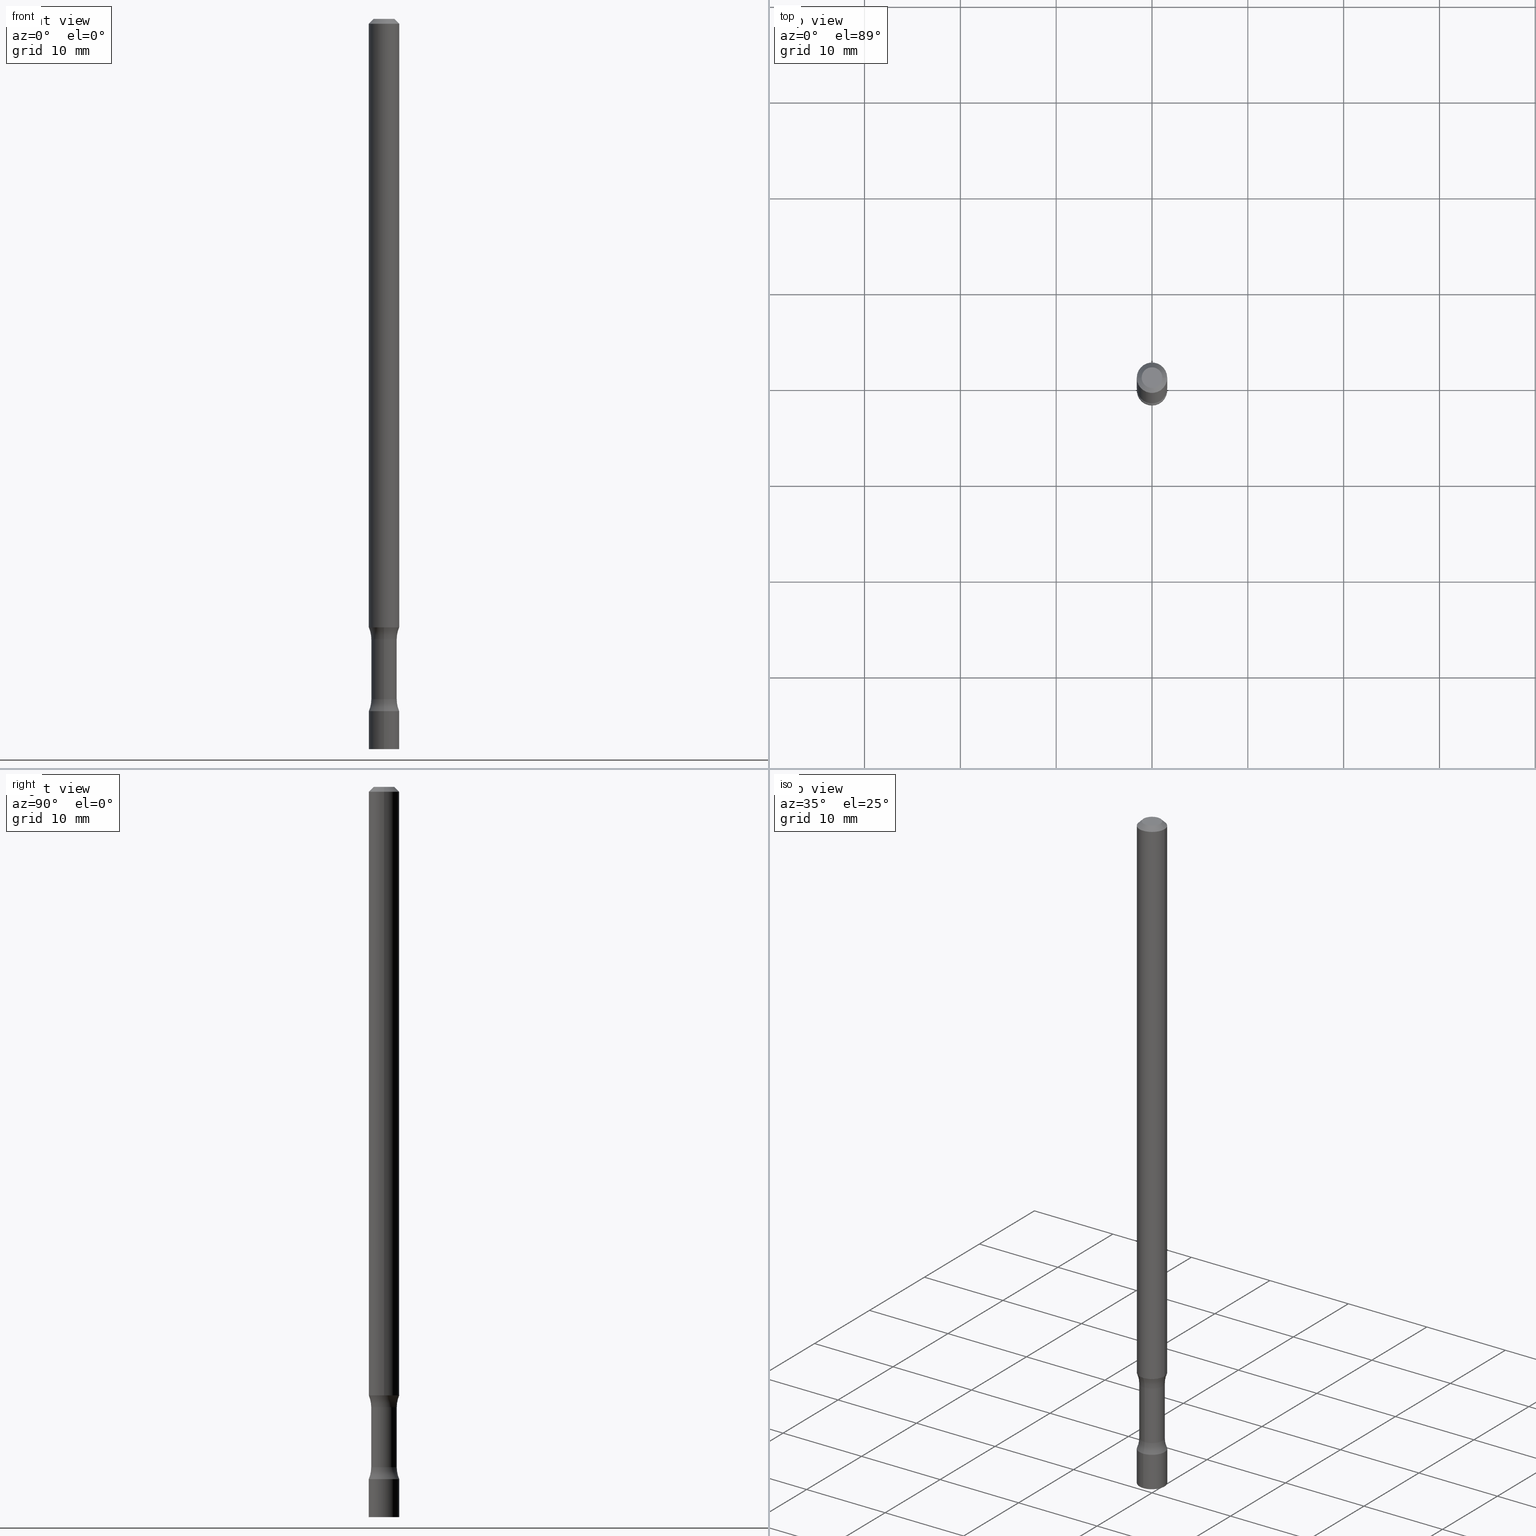
[diagram: canonical four-view strip — front | top / right | iso, engineering-drawing reading convention]
A machine part, canonical four-view strip (front | top / right | iso — engineering-drawing reading convention). The complete STEP part file that produces these views, byte-faithful:
ISO-10303-21;
HEADER;
FILE_DESCRIPTION (( 'STEP AP203' ),
    '1' );
FILE_NAME ('32700.STEP',
    '2024-03-11T13:16:19',
    ( '' ),
    ( '' ),
    'SwSTEP 2.0',
    'SolidWorks 2023',
    '' );
FILE_SCHEMA (( 'CONFIG_CONTROL_DESIGN' ));
ENDSEC;

DATA;
#1 = DIRECTION ( 'NONE',  ( 6.982962677686265922E-15, 1.000000000000000000, -5.664655036175374485E-15 ) ) ;
#2 = DIRECTION ( 'NONE',  ( -9.279497241250937144E-30, 5.664655036175374485E-15, 1.000000000000000000 ) ) ;
#3 = CARTESIAN_POINT ( 'NONE',  ( 4.440892098500635036E-16, 0.06250000000000012490, -2.176388210955470377E-16 ) ) ;
#4 = EDGE_LOOP ( 'NONE', ( #107, #236, #346, #376 ) ) ;
#5 = EDGE_CURVE ( 'NONE', #458, #188, #14, .T. ) ;
#6 = CARTESIAN_POINT ( 'NONE',  ( 0.000000000000000000, 0.000000000000000000, 0.000000000000000000 ) ) ;
#7 = DIRECTION ( 'NONE',  ( 6.982962677686265922E-15, 1.000000000000000000, -1.040703997586390090E-14 ) ) ;
#8 = COORDINATED_UNIVERSAL_TIME_OFFSET ( 5, 0, .BEHIND. ) ;
#9 = DIRECTION ( 'NONE',  ( 1.000000000000000000, -6.982962677686265922E-15, 4.876176775795935793E-29 ) ) ;
#10 = PERSON_AND_ORGANIZATION ( #508, #379 ) ;
#11 = CARTESIAN_POINT ( 'NONE',  ( 0.000000000000000000, 0.000000000000000000, 0.000000000000000000 ) ) ;
#12 = DIRECTION ( 'NONE',  ( 9.279497241250942749E-30, -5.664655036175374485E-15, -1.000000000000000000 ) ) ;
#13 = APPROVAL ( #252, 'UNSPECIFIED' ) ;
#14 = CIRCLE ( 'NONE', #63, 0.06249999999999981265 ) ;
#15 = APPROVAL_PERSON_ORGANIZATION ( #476, #13, #50 ) ;
#16 = PERSON_AND_ORGANIZATION_ROLE ( 'creator' ) ;
#17 = CARTESIAN_POINT ( 'NONE',  ( 4.440892098501371635E-16, 0.06249999999999023004, -2.843800000000000328 ) ) ;
#18 = CARTESIAN_POINT ( 'NONE',  ( 8.350811314681758556E-46, -1.192274536304357760E-31, -3.414809992080329023E-17 ) ) ;
#19 = CC_DESIGN_DATE_AND_TIME_ASSIGNMENT ( #166, #281, ( #145 ) ) ;
#20 = ORIENTED_EDGE ( 'NONE', *, *, #214, .T. ) ;
#21 = AXIS2_PLACEMENT_3D ( 'NONE', #452, #414, #225 ) ;
#22 = VECTOR ( 'NONE', #462, 39.37007874015748143 ) ;
#23 = FACE_OUTER_BOUND ( 'NONE', #332, .T. ) ;
#24 = ORIENTED_EDGE ( 'NONE', *, *, #497, .F. ) ;
#25 = DIRECTION ( 'NONE',  ( -6.982962677686265922E-15, -1.000000000000000000, 3.482221137528745503E-15 ) ) ;
#26 = DIRECTION ( 'NONE',  ( 1.000000000000000000, -6.982962677686276966E-15, 0.000000000000000000 ) ) ;
#27 = ORIENTED_EDGE ( 'NONE', *, *, #241, .F. ) ;
#28 = VECTOR ( 'NONE', #280, 39.37007874015748143 ) ;
#29 = APPROVAL_PERSON_ORGANIZATION ( #478, #419, #480 ) ;
#30 = DIRECTION ( 'NONE',  ( 9.279497241250942749E-30, -5.664655036175374485E-15, -1.000000000000000000 ) ) ;
#31 = ORIENTED_EDGE ( 'NONE', *, *, #185, .T. ) ;
#32 = ADVANCED_FACE ( 'NONE', ( #113 ), #270, .F. ) ;
#33 = CARTESIAN_POINT ( 'NONE',  ( 6.113672015462842613E-29, -8.728703347107864943E-15, -2.500000000000000000 ) ) ;
#34 = ORIENTED_EDGE ( 'NONE', *, *, #311, .F. ) ;
#35 = DIRECTION ( 'NONE',  ( -2.445468806185136597E-29, 3.491481338843145583E-15, 1.000000000000000000 ) ) ;
#36 = DIRECTION ( 'NONE',  ( 1.000000000000000000, -6.982962677686266711E-15, 0.000000000000000000 ) ) ;
#37 = CIRCLE ( 'NONE', #498, 0.06250000000000012490 ) ;
#38 = DIRECTION ( 'NONE',  ( 9.279497241250942749E-30, -5.664655036175374485E-15, -1.000000000000000000 ) ) ;
#39 = DIRECTION ( 'NONE',  ( -2.445468806185136597E-29, 3.491481338843145583E-15, 1.000000000000000000 ) ) ;
#40 = DIRECTION ( 'NONE',  ( -2.445468806185136877E-29, 3.491481338843145188E-15, 1.000000000000000000 ) ) ;
#41 = ORIENTED_EDGE ( 'NONE', *, *, #436, .T. ) ;
#42 = ADVANCED_FACE ( 'NONE', ( #310 ), #93, .T. ) ;
#43 = COORDINATED_UNIVERSAL_TIME_OFFSET ( 5, 0, .BEHIND. ) ;
#44 = ORIENTED_EDGE ( 'NONE', *, *, #200, .T. ) ;
#45 = PERSON_AND_ORGANIZATION ( #508, #379 ) ;
#46 = AXIS2_PLACEMENT_3D ( 'NONE', #321, #253, #481 ) ;
#47 = AXIS2_PLACEMENT_3D ( 'NONE', #390, #35, #468 ) ;
#48 = DIRECTION ( 'NONE',  ( -1.000000000000000000, 6.982962677686265922E-15, -4.883557194083112901E-29 ) ) ;
#49 = APPLICATION_CONTEXT ( 'configuration controlled 3d designs of mechanical parts and assemblies' ) ;
#50 = APPROVAL_ROLE ( '' ) ;
#51 = CARTESIAN_POINT ( 'NONE',  ( 0.06249999999999981265, -4.986107516375828376E-16, -0.02000000000000013572 ) ) ;
#52 = CC_DESIGN_DATE_AND_TIME_ASSIGNMENT ( #316, #357, ( #228 ) ) ;
#53 = FACE_OUTER_BOUND ( 'NONE', #226, .T. ) ;
#54 = APPROVAL_STATUS ( 'not_yet_approved' ) ;
#55 = PLANE ( 'NONE',  #504 ) ;
#56 = AXIS2_PLACEMENT_3D ( 'NONE', #374, #106, #25 ) ;
#57 = AXIS2_PLACEMENT_3D ( 'NONE', #6, #198, #359 ) ;
#58 = FACE_OUTER_BOUND ( 'NONE', #301, .T. ) ;
#59 = EDGE_CURVE ( 'NONE', #86, #149, #201, .T. ) ;
#60 = FACE_OUTER_BOUND ( 'NONE', #308, .T. ) ;
#61 = VERTEX_POINT ( 'NONE', #165 ) ;
#62 = DIRECTION ( 'NONE',  ( 6.982962677686265133E-15, 1.000000000000000000, -1.040703997586395454E-14 ) ) ;
#63 = AXIS2_PLACEMENT_3D ( 'NONE', #466, #39, #36 ) ;
#64 = CIRCLE ( 'NONE', #47, 0.04249999999999975325 ) ;
#65 = PRODUCT_DEFINITION_FORMATION_WITH_SPECIFIED_SOURCE ( 'ANY', '', #348, .NOT_KNOWN. ) ;
#66 = DIRECTION ( 'NONE',  ( 6.982962677686265922E-15, 1.000000000000000000, -1.040703997586390090E-14 ) ) ;
#67 = APPLICATION_CONTEXT ( 'configuration controlled 3d designs of mechanical parts and assemblies' ) ;
#68 = ORIENTED_EDGE ( 'NONE', *, *, #397, .F. ) ;
#69 = FACE_OUTER_BOUND ( 'NONE', #275, .T. ) ;
#70 = CARTESIAN_POINT ( 'NONE',  ( 6.927353170398529662E-29, -9.625230182753911430E-15, -2.794810205144336201 ) ) ;
#71 = ORIENTED_EDGE ( 'NONE', *, *, #380, .T. ) ;
#72 = VECTOR ( 'NONE', #12, 39.37007874015748143 ) ;
#73 = LOCAL_TIME ( 9, 16, 19.00000000000000000, #43 ) ;
#74 = CARTESIAN_POINT ( 'NONE',  ( 4.890937612370306439E-31, -6.982962677686338448E-17, -0.02000000000000013572 ) ) ;
#75 = VERTEX_POINT ( 'NONE', #407 ) ;
#76 = PRODUCT_RELATED_PRODUCT_CATEGORY ( 'detail', '', ( #348 ) ) ;
#77 =( LENGTH_UNIT ( ) NAMED_UNIT ( * ) SI_UNIT ( $, .METRE. ) );
#78 = ORIENTED_EDGE ( 'NONE', *, *, #224, .F. ) ;
#79 = CARTESIAN_POINT ( 'NONE',  ( 0.06249999999999981265, -4.986107516375828376E-16, -0.02000000000000013572 ) ) ;
#80 = ORIENTED_EDGE ( 'NONE', *, *, #82, .F. ) ;
#81 = CLOSED_SHELL ( 'NONE', ( #105, #285, #442, #116 ) ) ;
#82 = EDGE_CURVE ( 'NONE', #388, #190, #329, .T. ) ;
#83 = LINE ( 'NONE', #302, #239 ) ;
#84 = ORIENTED_EDGE ( 'NONE', *, *, #455, .T. ) ;
#85 = PERSON_AND_ORGANIZATION_ROLE ( 'design_owner' ) ;
#86 = VERTEX_POINT ( 'NONE', #17 ) ;
#87 = PERSON_AND_ORGANIZATION ( #508, #379 ) ;
#88 = DIRECTION ( 'NONE',  ( 6.982962677686265922E-15, 1.000000000000000000, -5.664655036175374485E-15 ) ) ;
#89 = ADVANCED_FACE ( 'NONE', ( #404 ), #487, .F. ) ;
#90 = COORDINATED_UNIVERSAL_TIME_OFFSET ( 5, 0, .BEHIND. ) ;
#91 = VECTOR ( 'NONE', #408, 39.37007874015748143 ) ;
#92 = CIRCLE ( 'NONE', #447, 0.06250000000000012490 ) ;
#93 = CYLINDRICAL_SURFACE ( 'NONE', #323, 0.06249999999999991673 ) ;
#94 = APPROVAL_DATE_TIME ( #283, #419 ) ;
#95 = DIRECTION ( 'NONE',  ( -2.445468806185136597E-29, 3.491481338843145583E-15, 1.000000000000000000 ) ) ;
#96 = PERSON_AND_ORGANIZATION_ROLE ( 'creator' ) ;
#97 = DIRECTION ( 'NONE',  ( 9.279497241250942749E-30, -5.664655036175374485E-15, -1.000000000000000000 ) ) ;
#98 = EDGE_CURVE ( 'NONE', #75, #368, #168, .T. ) ;
#99 = DIRECTION ( 'NONE',  ( 9.279497241250942749E-30, -5.664655036175374485E-15, -1.000000000000000000 ) ) ;
#100 = AXIS2_PLACEMENT_3D ( 'NONE', #18, #174, #328 ) ;
#101 = CARTESIAN_POINT ( 'NONE',  ( -0.06249999999999981265, 3.666055405785269414E-16, -0.02000000000000013572 ) ) ;
#102 = CYLINDRICAL_SURFACE ( 'NONE', #387, 0.05249999999999951927 ) ;
#103 = DIRECTION ( 'NONE',  ( 6.982962677686265133E-15, 1.000000000000000000, -1.040703997586400819E-14 ) ) ;
#104 = CLOSED_SHELL ( 'NONE', ( #118, #251, #303, #209, #124, #42 ) ) ;
#105 = ADVANCED_FACE ( 'NONE', ( #445 ), #485, .T. ) ;
#106 = DIRECTION ( 'NONE',  ( -2.451935170201767991E-29, 3.482221137528745897E-15, 1.000000000000000000 ) ) ;
#107 = ORIENTED_EDGE ( 'NONE', *, *, #455, .F. ) ;
#108 = CARTESIAN_POINT ( 'NONE',  ( -0.04249999999999975325, 3.316907271900957360E-16, -3.414809992080549041E-17 ) ) ;
#109 = ORIENTED_EDGE ( 'NONE', *, *, #98, .T. ) ;
#110 = ORIENTED_EDGE ( 'NONE', *, *, #5, .F. ) ;
#111 = AXIS2_PLACEMENT_3D ( 'NONE', #11, #401, #248 ) ;
#112 = CC_DESIGN_APPROVAL ( #419, ( #145 ) ) ;
#113 = FACE_OUTER_BOUND ( 'NONE', #454, .T. ) ;
#114 = CARTESIAN_POINT ( 'NONE',  ( 6.972813237019788711E-29, -9.902740470904248749E-15, -2.843800000000000328 ) ) ;
#115 = VERTEX_POINT ( 'NONE', #282 ) ;
#116 = ADVANCED_FACE ( 'NONE', ( #287 ), #55, .T. ) ;
#117 = ORIENTED_EDGE ( 'NONE', *, *, #214, .F. ) ;
#118 = ADVANCED_FACE ( 'NONE', ( #58 ), #173, .T. ) ;
#119 = CIRCLE ( 'NONE', #354, 0.06250000000000001388 ) ;
#120 = DIRECTION ( 'NONE',  ( 1.000000000000000000, -6.982962677686266711E-15, 0.000000000000000000 ) ) ;
#121 = VERTEX_POINT ( 'NONE', #216 ) ;
#122 = MANIFOLD_SOLID_BREP ( 'Body-Move/Copy2[4]', #345 ) ;
#123 = CALENDAR_DATE ( 2024, 11, 3 ) ;
#124 = ADVANCED_FACE ( 'NONE', ( #435 ), #358, .F. ) ;
#125 = DIRECTION ( 'NONE',  ( -2.438088387897960049E-29, 3.491481338843145188E-15, 1.000000000000000000 ) ) ;
#126 =( CONVERSION_BASED_UNIT ( 'INCH', #318 ) LENGTH_UNIT ( ) NAMED_UNIT ( #416 ) );
#127 = DIRECTION ( 'NONE',  ( 9.279497241250942749E-30, -5.664655036175374485E-15, -1.000000000000000000 ) ) ;
#128 = APPROVAL ( #54, 'UNSPECIFIED' ) ;
#129 = CALENDAR_DATE ( 2024, 11, 3 ) ;
#130 = AXIS2_PLACEMENT_3D ( 'NONE', #231, #196, #277 ) ;
#131 = CARTESIAN_POINT ( 'NONE',  ( -4.364351673553925076E-16, -0.06250000000000012490, 2.176388210955470377E-16 ) ) ;
#132 = CARTESIAN_POINT ( 'NONE',  ( 6.972813237019788711E-29, -9.902740470904250327E-15, -2.843800000000000328 ) ) ;
#133 = FACE_OUTER_BOUND ( 'NONE', #428, .T. ) ;
#134 = CARTESIAN_POINT ( 'NONE',  ( 4.890937612370306439E-31, -6.982962677686338448E-17, -0.02000000000000013572 ) ) ;
#135 = CONICAL_SURFACE ( 'NONE', #422, 0.06249999999999981265, 0.7853981633974472798 ) ;
#136 = CC_DESIGN_APPROVAL ( #13, ( #65 ) ) ;
#137 = DIRECTION ( 'NONE',  ( 6.982962677686265922E-15, 1.000000000000000000, -5.664655036175374485E-15 ) ) ;
#138 = ORIENTED_EDGE ( 'NONE', *, *, #506, .T. ) ;
#139 = DIRECTION ( 'NONE',  ( 6.982962677686265133E-15, 1.000000000000000000, -1.040703997586395454E-14 ) ) ;
#140 = EDGE_LOOP ( 'NONE', ( #117, #80 ) ) ;
#141 = DIRECTION ( 'NONE',  ( 2.438088387897960049E-29, -3.491481338843145188E-15, -1.000000000000000000 ) ) ;
#142 = ORIENTED_EDGE ( 'NONE', *, *, #297, .T. ) ;
#143 = AXIS2_PLACEMENT_3D ( 'NONE', #395, #48, #364 ) ;
#144 = AXIS2_PLACEMENT_3D ( 'NONE', #421, #465, #1 ) ;
#145 = SECURITY_CLASSIFICATION ( '', '', #394 ) ;
#146 = CARTESIAN_POINT ( 'NONE',  ( 7.355805510605304813E-29, -1.044666341258623809E-14, -3.000000000000000444 ) ) ;
#147 = ORIENTED_EDGE ( 'NONE', *, *, #426, .T. ) ;
#148 = CARTESIAN_POINT ( 'NONE',  ( -1.217738394604375642E-15, -0.1775000000000093725, -2.794810205144334425 ) ) ;
#149 = VERTEX_POINT ( 'NONE', #479 ) ;
#150 = CARTESIAN_POINT ( 'NONE',  ( 6.972813237019788711E-29, -9.902740470904248749E-15, -2.843800000000000328 ) ) ;
#151 = ORIENTED_EDGE ( 'NONE', *, *, #365, .T. ) ;
#152 = AXIS2_PLACEMENT_3D ( 'NONE', #477, #125, #9 ) ;
#153 = CARTESIAN_POINT ( 'NONE',  ( 6.653784121865581936E-29, -7.955232069467152973E-15, -2.500000000000000000 ) ) ;
#154 = ORIENTED_EDGE ( 'NONE', *, *, #219, .F. ) ;
#155 = CARTESIAN_POINT ( 'NONE',  ( -4.287811248606521904E-16, -0.06250000000001010303, -2.843799999999999883 ) ) ;
#156 = DIRECTION ( 'NONE',  ( -6.982962677686265922E-15, -1.000000000000000000, 5.664655036175374485E-15 ) ) ;
#157 = LINE ( 'NONE', #3, #221 ) ;
#158 = ORIENTED_EDGE ( 'NONE', *, *, #497, .T. ) ;
#159 = AXIS2_PLACEMENT_3D ( 'NONE', #264, #255, #62 ) ;
#160 = COORDINATED_UNIVERSAL_TIME_OFFSET ( 5, 0, .BEHIND. ) ;
#161 = AXIS2_PLACEMENT_3D ( 'NONE', #266, #233, #381 ) ;
#162 = CARTESIAN_POINT ( 'NONE',  ( 6.930003138792703270E-29, -9.621435277186618762E-15, -2.794810205144335757 ) ) ;
#163 = EDGE_CURVE ( 'NONE', #190, #149, #167, .T. ) ;
#164 = CALENDAR_DATE ( 2024, 11, 3 ) ;
#165 = CARTESIAN_POINT ( 'NONE',  ( 4.364351673554629134E-16, 0.06249999999999029943, -2.843800000000000772 ) ) ;
#166 = DATE_AND_TIME ( #164, #325 ) ;
#167 = LINE ( 'NONE', #131, #28 ) ;
#168 = CIRCLE ( 'NONE', #405, 0.05249999999999978989 ) ;
#169 = AXIS2_PLACEMENT_3D ( 'NONE', #148, #460, #386 ) ;
#170 = CARTESIAN_POINT ( 'NONE',  ( 6.699244188486840986E-29, -8.232742357617490292E-15, -2.548989794855664570 ) ) ;
#171 = ADVANCED_FACE ( 'NONE', ( #53 ), #284, .F. ) ;
#172 = DATE_AND_TIME ( #352, #473 ) ;
#173 = CYLINDRICAL_SURFACE ( 'NONE', #111, 0.06249999999999991673 ) ;
#174 = DIRECTION ( 'NONE',  ( -2.445468806185136597E-29, 3.491481338843145583E-15, 1.000000000000000000 ) ) ;
#175 = EDGE_CURVE ( 'NONE', #420, #75, #327, .T. ) ;
#176 = CARTESIAN_POINT ( 'NONE',  ( -3.944786348717910241E-16, -0.05250000000000748512, -2.548989794855663682 ) ) ;
#177 = AXIS2_PLACEMENT_3D ( 'NONE', #180, #141, #333 ) ;
#178 = TOROIDAL_SURFACE ( 'NONE', #362, 0.1774999999999997413, 0.1250000000000000000 ) ;
#179 = EDGE_CURVE ( 'NONE', #61, #75, #378, .T. ) ;
#180 = CARTESIAN_POINT ( 'NONE',  ( 2.967759138016645800E-16, 0.04249999999999975325, -1.654620068612344651E-16 ) ) ;
#181 = CYLINDRICAL_SURFACE ( 'NONE', #159, 0.05249999999999951927 ) ;
#182 = CARTESIAN_POINT ( 'NONE',  ( 6.699244188486840986E-29, -8.232742357617490292E-15, -2.548989794855664570 ) ) ;
#183 = ORIENTED_EDGE ( 'NONE', *, *, #163, .F. ) ;
#184 = CONICAL_SURFACE ( 'NONE', #21, 0.06249999999999981265, 0.7853981633974472798 ) ;
#185 = EDGE_CURVE ( 'NONE', #420, #337, #246, .T. ) ;
#186 = PLANE ( 'NONE',  #489 ) ;
#187 = DIRECTION ( 'NONE',  ( 1.000000000000000000, -6.982962677686276966E-15, 0.000000000000000000 ) ) ;
#188 = VERTEX_POINT ( 'NONE', #51 ) ;
#189 = DIRECTION ( 'NONE',  ( 6.982962677686265922E-15, 1.000000000000000000, -3.482221137528745897E-15 ) ) ;
#190 = VERTEX_POINT ( 'NONE', #326 ) ;
#191 = AXIS2_PLACEMENT_3D ( 'NONE', #205, #207, #319 ) ;
#192 = AXIS2_PLACEMENT_3D ( 'NONE', #114, #427, #269 ) ;
#193 = FACE_OUTER_BOUND ( 'NONE', #425, .T. ) ;
#194 = ADVANCED_FACE ( 'NONE', ( #133 ), #102, .T. ) ;
#195 = CARTESIAN_POINT ( 'NONE',  ( 6.954424191029292150E-29, -9.929074631402139706E-15, -2.843800000000000328 ) ) ;
#196 = DIRECTION ( 'NONE',  ( -1.000000000000000000, 6.982962677686265922E-15, -4.883557194083112901E-29 ) ) ;
#197 = EDGE_LOOP ( 'NONE', ( #244, #142 ) ) ;
#198 = DIRECTION ( 'NONE',  ( 0.000000000000000000, 0.000000000000000000, 1.000000000000000000 ) ) ;
#199 = VERTEX_POINT ( 'NONE', #262 ) ;
#200 = EDGE_CURVE ( 'NONE', #234, #121, #430, .T. ) ;
#201 = CIRCLE ( 'NONE', #396, 0.06250000000000012490 ) ;
#202 = AXIS2_PLACEMENT_3D ( 'NONE', #331, #492, #137 ) ;
#203 = PERSON_AND_ORGANIZATION_ROLE ( 'classification_officer' ) ;
#204 = CIRCLE ( 'NONE', #306, 0.06249999999999938244 ) ;
#205 = CARTESIAN_POINT ( 'NONE',  ( 7.355805510605304813E-29, -1.044666341258623809E-14, -3.000000000000000444 ) ) ;
#206 = PERSON_AND_ORGANIZATION ( #508, #379 ) ;
#207 = DIRECTION ( 'NONE',  ( -2.451935170201767991E-29, 3.482221137528745897E-15, 1.000000000000000000 ) ) ;
#208 = PERSON_AND_ORGANIZATION ( #508, #379 ) ;
#209 = ADVANCED_FACE ( 'NONE', ( #293 ), #338, .F. ) ;
#210 = CARTESIAN_POINT ( 'NONE',  ( 6.113672015462842613E-29, -8.728703347107864943E-15, -2.500000000000000000 ) ) ;
#211 = APPROVAL_ROLE ( '' ) ;
#212 = AXIS2_PLACEMENT_3D ( 'NONE', #499, #366, #495 ) ;
#213 = DIRECTION ( 'NONE',  ( 9.279497241250937144E-30, -5.664655036175374485E-15, -1.000000000000000000 ) ) ;
#214 = EDGE_CURVE ( 'NONE', #190, #388, #37, .T. ) ;
#215 =( GEOMETRIC_REPRESENTATION_CONTEXT ( 3 ) GLOBAL_UNCERTAINTY_ASSIGNED_CONTEXT ( ( #484 ) ) GLOBAL_UNIT_ASSIGNED_CONTEXT ( ( #126, #402, #440 ) ) REPRESENTATION_CONTEXT ( 'NONE', 'WORKASPACE' ) );
#216 = CARTESIAN_POINT ( 'NONE',  ( 4.364351673554537429E-16, 0.06249999999999137495, -2.500000000000000444 ) ) ;
#217 = CARTESIAN_POINT ( 'NONE',  ( 0.04249999999999975325, -3.950909582714356105E-16, -3.414809992080087434E-17 ) ) ;
#218 = ORIENTED_EDGE ( 'NONE', *, *, #436, .F. ) ;
#219 = EDGE_CURVE ( 'NONE', #115, #199, #119, .T. ) ;
#220 = FACE_OUTER_BOUND ( 'NONE', #343, .T. ) ;
#221 = VECTOR ( 'NONE', #350, 39.37007874015748143 ) ;
#222 = AXIS2_PLACEMENT_3D ( 'NONE', #74, #502, #120 ) ;
#223 = CIRCLE ( 'NONE', #398, 0.06250000000000001388 ) ;
#224 = EDGE_CURVE ( 'NONE', #337, #420, #260, .T. ) ;
#225 = DIRECTION ( 'NONE',  ( -1.000000000000000000, 6.982962677686266711E-15, 0.000000000000000000 ) ) ;
#226 = EDGE_LOOP ( 'NONE', ( #68, #349 ) ) ;
#227 = DIRECTION ( 'NONE',  ( 9.279497241250942749E-30, -5.664655036175374485E-15, -1.000000000000000000 ) ) ;
#228 = PRODUCT_DEFINITION ( 'UNKNOWN', '', #65, #429 ) ;
#229 = ORIENTED_EDGE ( 'NONE', *, *, #385, .F. ) ;
#230 = ADVANCED_BREP_SHAPE_REPRESENTATION ( '32700', ( #474, #469, #122, #57 ), #215 ) ;
#231 = CARTESIAN_POINT ( 'NONE',  ( 1.239475875289373833E-15, 0.1774999999999909706, -2.548989794855665014 ) ) ;
#232 = CIRCLE ( 'NONE', #130, 0.1250000000000000000 ) ;
#233 = DIRECTION ( 'NONE',  ( 1.000000000000000000, -6.860497997771530774E-15, 4.814185177499851655E-29 ) ) ;
#234 = VERTEX_POINT ( 'NONE', #259 ) ;
#235 = DIRECTION ( 'NONE',  ( 6.982962677686265922E-15, 1.000000000000000000, -8.741913579725624944E-15 ) ) ;
#236 = ORIENTED_EDGE ( 'NONE', *, *, #400, .F. ) ;
#237 = CARTESIAN_POINT ( 'NONE',  ( -0.06249999999999981265, 3.666055405785269414E-16, -0.02000000000000013572 ) ) ;
#238 = ORIENTED_EDGE ( 'NONE', *, *, #59, .T. ) ;
#239 = VECTOR ( 'NONE', #40, 39.37007874015748143 ) ;
#240 = DIRECTION ( 'NONE',  ( 9.279497241250942749E-30, -5.664655036175374485E-15, -1.000000000000000000 ) ) ;
#241 = EDGE_CURVE ( 'NONE', #337, #368, #494, .T. ) ;
#242 = VERTEX_POINT ( 'NONE', #217 ) ;
#243 = APPLICATION_PROTOCOL_DEFINITION ( 'international standard', 'config_control_design', 1994, #49 ) ;
#244 = ORIENTED_EDGE ( 'NONE', *, *, #400, .T. ) ;
#245 = CARTESIAN_POINT ( 'NONE',  ( 3.666055405785967063E-16, 0.05249999999998872929, -3.000000000000000888 ) ) ;
#246 = CIRCLE ( 'NONE', #413, 0.05249999999999925560 ) ;
#247 = PERSON_AND_ORGANIZATION ( #508, #379 ) ;
#248 = DIRECTION ( 'NONE',  ( 1.000000000000000000, -6.982962677686266711E-15, 4.876176775795935793E-29 ) ) ;
#249 = SHAPE_DEFINITION_REPRESENTATION ( #273, #230 ) ;
#250 = DIRECTION ( 'NONE',  ( 6.982962677686265922E-15, 1.000000000000000000, -3.482221137528745897E-15 ) ) ;
#251 = ADVANCED_FACE ( 'NONE', ( #69 ), #184, .T. ) ;
#252 = APPROVAL_STATUS ( 'not_yet_approved' ) ;
#253 = DIRECTION ( 'NONE',  ( -2.451935170201767991E-29, 3.482221137528745897E-15, 1.000000000000000000 ) ) ;
#254 = DIRECTION ( 'NONE',  ( -2.451935170201767991E-29, 3.482221137528745897E-15, 1.000000000000000000 ) ) ;
#255 = DIRECTION ( 'NONE',  ( 9.279497241250942749E-30, -5.664655036175374485E-15, -1.000000000000000000 ) ) ;
#256 = EDGE_CURVE ( 'NONE', #368, #75, #314, .T. ) ;
#257 = DIRECTION ( 'NONE',  ( -6.982962677686265922E-15, -1.000000000000000000, 0.000000000000000000 ) ) ;
#258 = ORIENTED_EDGE ( 'NONE', *, *, #385, .T. ) ;
#259 = CARTESIAN_POINT ( 'NONE',  ( -4.287811248606495280E-16, -0.06250000000000728584, -2.499999999999999556 ) ) ;
#260 = CIRCLE ( 'NONE', #339, 0.05249999999999925560 ) ;
#261 = EDGE_LOOP ( 'NONE', ( #229, #138, #272, #110 ) ) ;
#262 = CARTESIAN_POINT ( 'NONE',  ( -0.06250000000000001388, -3.955177277092293616E-15, -2.500000000000000000 ) ) ;
#263 = ORIENTED_EDGE ( 'NONE', *, *, #185, .F. ) ;
#264 = CARTESIAN_POINT ( 'NONE',  ( 7.117758983928128793E-29, -1.078755958755484022E-14, -3.000000000000000444 ) ) ;
#265 = ORIENTED_EDGE ( 'NONE', *, *, #256, .F. ) ;
#266 = CARTESIAN_POINT ( 'NONE',  ( -1.217738394604374064E-15, -0.1775000000000074296, -2.548989794855662794 ) ) ;
#267 = VERTEX_POINT ( 'NONE', #108 ) ;
#268 = LOCAL_TIME ( 9, 16, 19.00000000000000000, #90 ) ;
#269 = DIRECTION ( 'NONE',  ( 6.982962677686265922E-15, 1.000000000000000000, -8.741913579725624944E-15 ) ) ;
#270 = PLANE ( 'NONE',  #488 ) ;
#271 = CARTESIAN_POINT ( 'NONE',  ( 6.954424191029292150E-29, -9.929074631402139706E-15, -2.843800000000000328 ) ) ;
#272 = ORIENTED_EDGE ( 'NONE', *, *, #412, .T. ) ;
#273 = PRODUCT_DEFINITION_SHAPE ( 'NONE', 'NONE',  #228 ) ;
#274 = CARTESIAN_POINT ( 'NONE',  ( 3.666055405785906912E-16, 0.05249999999999101913, -2.548989794855665014 ) ) ;
#275 = EDGE_LOOP ( 'NONE', ( #457, #84, #147, #34 ) ) ;
#276 = CC_DESIGN_PERSON_AND_ORGANIZATION_ASSIGNMENT ( #45, #203, ( #145 ) ) ;
#277 = DIRECTION ( 'NONE',  ( -6.982962677686265922E-15, -1.000000000000000000, 0.000000000000000000 ) ) ;
#278 = ORIENTED_EDGE ( 'NONE', *, *, #365, .F. ) ;
#279 = DATE_AND_TIME ( #123, #389 ) ;
#280 = DIRECTION ( 'NONE',  ( -2.451935170201767991E-29, 3.482221137528745897E-15, 1.000000000000000000 ) ) ;
#281 = DATE_TIME_ROLE ( 'classification_date' ) ;
#282 = CARTESIAN_POINT ( 'NONE',  ( 0.06250000000000001388, -9.165138514463256612E-15, -2.500000000000000000 ) ) ;
#283 = DATE_AND_TIME ( #320, #268 ) ;
#284 = PLANE ( 'NONE',  #470 ) ;
#285 = ADVANCED_FACE ( 'NONE', ( #23 ), #453, .T. ) ;
#286 = CARTESIAN_POINT ( 'NONE',  ( 0.000000000000000000, 0.000000000000000000, 0.000000000000000000 ) ) ;
#287 = FACE_OUTER_BOUND ( 'NONE', #140, .T. ) ;
#288 = TOROIDAL_SURFACE ( 'NONE', #202, 0.1774999999999991862, 0.1250000000000000000 ) ;
#289 = CARTESIAN_POINT ( 'NONE',  ( -3.601761448829309425E-16, -0.05250000000001030925, -2.999999999999999556 ) ) ;
#290 = EDGE_LOOP ( 'NONE', ( #154, #292 ) ) ;
#291 = CARTESIAN_POINT ( 'NONE',  ( 6.972813237019788711E-29, -9.902740470904250327E-15, -2.843800000000000328 ) ) ;
#292 = ORIENTED_EDGE ( 'NONE', *, *, #506, .F. ) ;
#293 = FACE_OUTER_BOUND ( 'NONE', #197, .T. ) ;
#294 = ADVANCED_FACE ( 'NONE', ( #220 ), #181, .T. ) ;
#295 = CARTESIAN_POINT ( 'NONE',  ( 7.117758983928128793E-29, -1.078755958755484022E-14, -3.000000000000000444 ) ) ;
#296 = ORIENTED_EDGE ( 'NONE', *, *, #426, .F. ) ;
#297 = EDGE_CURVE ( 'NONE', #242, #267, #446, .T. ) ;
#298 = DIRECTION ( 'NONE',  ( -6.982962677686265922E-15, -1.000000000000000000, 0.000000000000000000 ) ) ;
#299 = ORIENTED_EDGE ( 'NONE', *, *, #59, .F. ) ;
#300 = FACE_OUTER_BOUND ( 'NONE', #493, .T. ) ;
#301 = EDGE_LOOP ( 'NONE', ( #382, #258, #296, #393 ) ) ;
#302 = CARTESIAN_POINT ( 'NONE',  ( 0.06249999999999991673, -4.364351673553910778E-16, 3.047610484872455667E-30 ) ) ;
#303 = ADVANCED_FACE ( 'NONE', ( #486 ), #135, .T. ) ;
#304 = AXIS2_PLACEMENT_3D ( 'NONE', #70, #335, #66 ) ;
#305 = EDGE_LOOP ( 'NONE', ( #151, #238 ) ) ;
#306 = AXIS2_PLACEMENT_3D ( 'NONE', #153, #30, #383 ) ;
#307 = LINE ( 'NONE', #312, #22 ) ;
#308 = EDGE_LOOP ( 'NONE', ( #78, #158, #44, #218 ) ) ;
#309 = DIRECTION ( 'NONE',  ( 6.982962677686265922E-15, 1.000000000000000000, -5.664655036175375274E-15 ) ) ;
#310 = FACE_OUTER_BOUND ( 'NONE', #261, .T. ) ;
#311 = EDGE_CURVE ( 'NONE', #267, #458, #367, .T. ) ;
#312 = CARTESIAN_POINT ( 'NONE',  ( -0.06249999999999991673, 4.440892098500620245E-16, -3.074334431409311910E-30 ) ) ;
#313 = ORIENTED_EDGE ( 'NONE', *, *, #397, .T. ) ;
#314 = CIRCLE ( 'NONE', #304, 0.05249999999999978989 ) ;
#315 = CC_DESIGN_SECURITY_CLASSIFICATION ( #145, ( #65 ) ) ;
#316 = DATE_AND_TIME ( #129, #73 ) ;
#317 = DIRECTION ( 'NONE',  ( 1.000000000000000000, -6.982962677686266711E-15, 4.876176775795935793E-29 ) ) ;
#318 = LENGTH_MEASURE_WITH_UNIT ( LENGTH_MEASURE( 0.02539999999999999897 ), #77 );
#319 = DIRECTION ( 'NONE',  ( -6.982962677686265922E-15, -1.000000000000000000, 0.000000000000000000 ) ) ;
#320 = CALENDAR_DATE ( 2024, 11, 3 ) ;
#321 = CARTESIAN_POINT ( 'NONE',  ( 0.000000000000000000, 0.000000000000000000, 0.000000000000000000 ) ) ;
#322 = CC_DESIGN_PERSON_AND_ORGANIZATION_ASSIGNMENT ( #10, #16, ( #65 ) ) ;
#323 = AXIS2_PLACEMENT_3D ( 'NONE', #286, #95, #317 ) ;
#324 = APPROVAL_DATE_TIME ( #172, #128 ) ;
#325 = LOCAL_TIME ( 9, 16, 19.00000000000000000, #8 ) ;
#326 = CARTESIAN_POINT ( 'NONE',  ( -4.364351673553189463E-16, -0.06250000000001057487, -3.000000000000000444 ) ) ;
#327 = LINE ( 'NONE', #245, #72 ) ;
#328 = DIRECTION ( 'NONE',  ( 1.000000000000000000, -6.982962677686265922E-15, 4.879498284297472013E-29 ) ) ;
#329 = CIRCLE ( 'NONE', #191, 0.06250000000000012490 ) ;
#330 = VECTOR ( 'NONE', #501, 39.37007874015748143 ) ;
#331 = CARTESIAN_POINT ( 'NONE',  ( 6.710384845125517788E-29, -8.216788303224102385E-15, -2.548989794855663682 ) ) ;
#332 = EDGE_LOOP ( 'NONE', ( #503, #471, #391, #299 ) ) ;
#333 = DIRECTION ( 'NONE',  ( -1.000000000000000000, 6.982962677686265922E-15, -4.876176775795935793E-29 ) ) ;
#334 = ORIENTED_EDGE ( 'NONE', *, *, #464, .F. ) ;
#335 = DIRECTION ( 'NONE',  ( 9.279497241250942749E-30, -5.664655036175374485E-15, -1.000000000000000000 ) ) ;
#336 = ADVANCED_FACE ( 'NONE', ( #60 ), #288, .F. ) ;
#337 = VERTEX_POINT ( 'NONE', #176 ) ;
#338 = PLANE ( 'NONE',  #177 ) ;
#339 = AXIS2_PLACEMENT_3D ( 'NONE', #182, #371, #103 ) ;
#340 = CIRCLE ( 'NONE', #192, 0.06250000000000012490 ) ;
#341 = APPROVAL_PERSON_ORGANIZATION ( #206, #128, #211 ) ;
#342 = LINE ( 'NONE', #79, #330 ) ;
#343 = EDGE_LOOP ( 'NONE', ( #31, #507, #353, #451 ) ) ;
#344 = CARTESIAN_POINT ( 'NONE',  ( 4.440892098501351914E-16, 0.06249999999998967493, -3.000000000000000444 ) ) ;
#345 = CLOSED_SHELL ( 'NONE', ( #294, #467, #336, #491, #171, #32, #89, #194 ) ) ;
#346 = ORIENTED_EDGE ( 'NONE', *, *, #311, .T. ) ;
#347 = CARTESIAN_POINT ( 'NONE',  ( 6.930003138792703270E-29, -9.621435277186618762E-15, -2.794810205144335757 ) ) ;
#348 = PRODUCT ( '32700', '32700', '', ( #392 ) ) ;
#349 = ORIENTED_EDGE ( 'NONE', *, *, #200, .F. ) ;
#350 = DIRECTION ( 'NONE',  ( -2.451935170201767991E-29, 3.482221137528745897E-15, 1.000000000000000000 ) ) ;
#351 = ORIENTED_EDGE ( 'NONE', *, *, #449, .T. ) ;
#352 = CALENDAR_DATE ( 2024, 11, 3 ) ;
#353 = ORIENTED_EDGE ( 'NONE', *, *, #98, .F. ) ;
#354 = AXIS2_PLACEMENT_3D ( 'NONE', #418, #456, #26 ) ;
#355 = CIRCLE ( 'NONE', #222, 0.06249999999999981265 ) ;
#356 = CC_DESIGN_PERSON_AND_ORGANIZATION_ASSIGNMENT ( #208, #85, ( #348 ) ) ;
#357 = DATE_TIME_ROLE ( 'creation_date' ) ;
#358 = PLANE ( 'NONE',  #152 ) ;
#359 = DIRECTION ( 'NONE',  ( 1.000000000000000000, 0.000000000000000000, 0.000000000000000000 ) ) ;
#360 = DIRECTION ( 'NONE',  ( 2.451935170201767710E-29, -3.482221137528745897E-15, -1.000000000000000000 ) ) ;
#361 = AXIS2_PLACEMENT_3D ( 'NONE', #162, #99, #441 ) ;
#362 = AXIS2_PLACEMENT_3D ( 'NONE', #347, #38, #309 ) ;
#363 = COORDINATED_UNIVERSAL_TIME_OFFSET ( 5, 0, .BEHIND. ) ;
#364 = DIRECTION ( 'NONE',  ( -6.982962677686265922E-15, -1.000000000000000000, 0.000000000000000000 ) ) ;
#365 = EDGE_CURVE ( 'NONE', #149, #86, #369, .T. ) ;
#366 = DIRECTION ( 'NONE',  ( 9.279497241250942749E-30, -5.664655036175374485E-15, -1.000000000000000000 ) ) ;
#367 = LINE ( 'NONE', #101, #91 ) ;
#368 = VERTEX_POINT ( 'NONE', #432 ) ;
#369 = CIRCLE ( 'NONE', #439, 0.06250000000000012490 ) ;
#370 = CIRCLE ( 'NONE', #161, 0.1250000000000000000 ) ;
#371 = DIRECTION ( 'NONE',  ( 9.279497241250942749E-30, -5.664655036175374485E-15, -1.000000000000000000 ) ) ;
#372 = ORIENTED_EDGE ( 'NONE', *, *, #464, .T. ) ;
#373 = EDGE_CURVE ( 'NONE', #388, #86, #157, .T. ) ;
#374 = CARTESIAN_POINT ( 'NONE',  ( 0.000000000000000000, 0.000000000000000000, 0.000000000000000000 ) ) ;
#375 = DIRECTION ( 'NONE',  ( -2.451935170201767991E-29, 3.482221137528745897E-15, 1.000000000000000000 ) ) ;
#376 = ORIENTED_EDGE ( 'NONE', *, *, #5, .T. ) ;
#377 = FACE_OUTER_BOUND ( 'NONE', #305, .T. ) ;
#378 = CIRCLE ( 'NONE', #143, 0.1250000000000000000 ) ;
#379 = ORGANIZATION ( 'UNSPECIFIED', 'UNSPECIFIED', '' ) ;
#380 = EDGE_CURVE ( 'NONE', #61, #496, #92, .T. ) ;
#381 = DIRECTION ( 'NONE',  ( 6.860497997771530774E-15, 1.000000000000000000, 0.000000000000000000 ) ) ;
#382 = ORIENTED_EDGE ( 'NONE', *, *, #219, .T. ) ;
#383 = DIRECTION ( 'NONE',  ( 6.982962677686265922E-15, 1.000000000000000000, -8.741913579725729074E-15 ) ) ;
#384 = ORIENTED_EDGE ( 'NONE', *, *, #179, .F. ) ;
#385 = EDGE_CURVE ( 'NONE', #199, #458, #307, .T. ) ;
#386 = DIRECTION ( 'NONE',  ( 6.860497997771530774E-15, 1.000000000000000000, 0.000000000000000000 ) ) ;
#387 = AXIS2_PLACEMENT_3D ( 'NONE', #295, #227, #139 ) ;
#388 = VERTEX_POINT ( 'NONE', #344 ) ;
#389 = LOCAL_TIME ( 9, 16, 19.00000000000000000, #363 ) ;
#390 = CARTESIAN_POINT ( 'NONE',  ( 8.350811314681758556E-46, -1.192274536304357760E-31, -3.414809992080329023E-17 ) ) ;
#391 = ORIENTED_EDGE ( 'NONE', *, *, #163, .T. ) ;
#392 = MECHANICAL_CONTEXT ( 'NONE', #67, 'mechanical' ) ;
#393 = ORIENTED_EDGE ( 'NONE', *, *, #412, .F. ) ;
#394 = SECURITY_CLASSIFICATION_LEVEL ( 'unclassified' ) ;
#395 = CARTESIAN_POINT ( 'NONE',  ( 1.239475875289379947E-15, 0.1774999999999901101, -2.794810205144336646 ) ) ;
#396 = AXIS2_PLACEMENT_3D ( 'NONE', #132, #254, #438 ) ;
#397 = EDGE_CURVE ( 'NONE', #121, #234, #204, .T. ) ;
#398 = AXIS2_PLACEMENT_3D ( 'NONE', #33, #424, #187 ) ;
#399 = DIRECTION ( 'NONE',  ( 6.982962677686265133E-15, 1.000000000000000000, -1.040703997586400819E-14 ) ) ;
#400 = EDGE_CURVE ( 'NONE', #267, #242, #64, .T. ) ;
#401 = DIRECTION ( 'NONE',  ( -2.445468806185136597E-29, 3.491481338843145583E-15, 1.000000000000000000 ) ) ;
#402 =( NAMED_UNIT ( * ) PLANE_ANGLE_UNIT ( ) SI_UNIT ( $, .RADIAN. ) );
#403 = CC_DESIGN_PERSON_AND_ORGANIZATION_ASSIGNMENT ( #87, #443, ( #65 ) ) ;
#404 = FACE_OUTER_BOUND ( 'NONE', #431, .T. ) ;
#405 = AXIS2_PLACEMENT_3D ( 'NONE', #444, #97, #7 ) ;
#406 = CIRCLE ( 'NONE', #169, 0.1250000000000000000 ) ;
#407 = CARTESIAN_POINT ( 'NONE',  ( 3.666055405785967556E-16, 0.05249999999999016564, -2.794810205144336646 ) ) ;
#408 = DIRECTION ( 'NONE',  ( -0.7071067811865467956, 2.468850131082249172E-15, -0.7071067811865482389 ) ) ;
#409 = EDGE_LOOP ( 'NONE', ( #20, #415, #278, #183 ) ) ;
#410 = DIRECTION ( 'NONE',  ( 9.279497241250942749E-30, -5.664655036175374485E-15, -1.000000000000000000 ) ) ;
#411 = ORIENTED_EDGE ( 'NONE', *, *, #380, .F. ) ;
#412 = EDGE_CURVE ( 'NONE', #115, #188, #83, .T. ) ;
#413 = AXIS2_PLACEMENT_3D ( 'NONE', #170, #127, #399 ) ;
#414 = DIRECTION ( 'NONE',  ( 2.445468806185136597E-29, -3.491481338843145583E-15, -1.000000000000000000 ) ) ;
#415 = ORIENTED_EDGE ( 'NONE', *, *, #373, .T. ) ;
#416 = DIMENSIONAL_EXPONENTS ( 1.000000000000000000, 0.000000000000000000, 0.000000000000000000, 0.000000000000000000, 0.000000000000000000, 0.000000000000000000, 0.000000000000000000 ) ;
#417 = DIRECTION ( 'NONE',  ( 2.445468806185136597E-29, -3.491481338843145583E-15, -1.000000000000000000 ) ) ;
#418 = CARTESIAN_POINT ( 'NONE',  ( 6.113672015462842613E-29, -8.728703347107864943E-15, -2.500000000000000000 ) ) ;
#419 = APPROVAL ( #437, 'UNSPECIFIED' ) ;
#420 = VERTEX_POINT ( 'NONE', #274 ) ;
#421 = CARTESIAN_POINT ( 'NONE',  ( 6.710384845125517788E-29, -8.216788303224102385E-15, -2.548989794855663682 ) ) ;
#422 = AXIS2_PLACEMENT_3D ( 'NONE', #134, #417, #448 ) ;
#423 = ORIENTED_EDGE ( 'NONE', *, *, #256, .T. ) ;
#424 = DIRECTION ( 'NONE',  ( -2.445468806185136597E-29, 3.491481338843145583E-15, 1.000000000000000000 ) ) ;
#425 = EDGE_LOOP ( 'NONE', ( #24, #263, #41, #313 ) ) ;
#426 = EDGE_CURVE ( 'NONE', #188, #458, #355, .T. ) ;
#427 = DIRECTION ( 'NONE',  ( 9.279497241250942749E-30, -5.664655036175374485E-15, -1.000000000000000000 ) ) ;
#428 = EDGE_LOOP ( 'NONE', ( #27, #461, #463, #265 ) ) ;
#429 = DESIGN_CONTEXT ( 'detailed design', #49, 'design' ) ;
#430 = CIRCLE ( 'NONE', #212, 0.06249999999999938244 ) ;
#431 = EDGE_LOOP ( 'NONE', ( #334, #411, #500, #109 ) ) ;
#432 = CARTESIAN_POINT ( 'NONE',  ( -3.944786348717937851E-16, -0.05250000000000940026, -2.794810205144335757 ) ) ;
#433 = ORIENTED_EDGE ( 'NONE', *, *, #449, .F. ) ;
#434 = APPLICATION_PROTOCOL_DEFINITION ( 'international standard', 'config_control_design', 1994, #67 ) ;
#435 = FACE_OUTER_BOUND ( 'NONE', #290, .T. ) ;
#436 = EDGE_CURVE ( 'NONE', #420, #121, #232, .T. ) ;
#437 = APPROVAL_STATUS ( 'not_yet_approved' ) ;
#438 = DIRECTION ( 'NONE',  ( -6.982962677686265922E-15, -1.000000000000000000, 0.000000000000000000 ) ) ;
#439 = AXIS2_PLACEMENT_3D ( 'NONE', #291, #450, #257 ) ;
#440 =( NAMED_UNIT ( * ) SI_UNIT ( $, .STERADIAN. ) SOLID_ANGLE_UNIT ( ) );
#441 = DIRECTION ( 'NONE',  ( 6.982962677686265922E-15, 1.000000000000000000, -5.664655036175375274E-15 ) ) ;
#442 = ADVANCED_FACE ( 'NONE', ( #377 ), #186, .F. ) ;
#443 = PERSON_AND_ORGANIZATION_ROLE ( 'design_supplier' ) ;
#444 = CARTESIAN_POINT ( 'NONE',  ( 6.927353170398529662E-29, -9.625230182753911430E-15, -2.794810205144336201 ) ) ;
#445 = FACE_OUTER_BOUND ( 'NONE', #409, .T. ) ;
#446 = CIRCLE ( 'NONE', #100, 0.04249999999999975325 ) ;
#447 = AXIS2_PLACEMENT_3D ( 'NONE', #150, #240, #235 ) ;
#448 = DIRECTION ( 'NONE',  ( -1.000000000000000000, 6.982962677686266711E-15, 0.000000000000000000 ) ) ;
#449 = EDGE_CURVE ( 'NONE', #496, #61, #340, .T. ) ;
#450 = DIRECTION ( 'NONE',  ( -2.451935170201767991E-29, 3.482221137528745897E-15, 1.000000000000000000 ) ) ;
#451 = ORIENTED_EDGE ( 'NONE', *, *, #175, .F. ) ;
#452 = CARTESIAN_POINT ( 'NONE',  ( 4.890937612370306439E-31, -6.982962677686338448E-17, -0.02000000000000013572 ) ) ;
#453 = CYLINDRICAL_SURFACE ( 'NONE', #56, 0.06250000000000012490 ) ;
#454 = EDGE_LOOP ( 'NONE', ( #71, #351 ) ) ;
#455 = EDGE_CURVE ( 'NONE', #242, #188, #342, .T. ) ;
#456 = DIRECTION ( 'NONE',  ( -2.445468806185136597E-29, 3.491481338843145583E-15, 1.000000000000000000 ) ) ;
#457 = ORIENTED_EDGE ( 'NONE', *, *, #297, .F. ) ;
#458 = VERTEX_POINT ( 'NONE', #237 ) ;
#459 = VECTOR ( 'NONE', #410, 39.37007874015748143 ) ;
#460 = DIRECTION ( 'NONE',  ( 1.000000000000000000, -6.860497997771530774E-15, 4.814185177499851655E-29 ) ) ;
#461 = ORIENTED_EDGE ( 'NONE', *, *, #224, .T. ) ;
#462 = DIRECTION ( 'NONE',  ( -2.445468806185136877E-29, 3.491481338843145188E-15, 1.000000000000000000 ) ) ;
#463 = ORIENTED_EDGE ( 'NONE', *, *, #175, .T. ) ;
#464 = EDGE_CURVE ( 'NONE', #496, #368, #406, .T. ) ;
#465 = DIRECTION ( 'NONE',  ( 9.279497241250942749E-30, -5.664655036175374485E-15, -1.000000000000000000 ) ) ;
#466 = CARTESIAN_POINT ( 'NONE',  ( 4.890937612370306439E-31, -6.982962677686338448E-17, -0.02000000000000013572 ) ) ;
#467 = ADVANCED_FACE ( 'NONE', ( #300 ), #178, .F. ) ;
#468 = DIRECTION ( 'NONE',  ( 1.000000000000000000, -6.982962677686265922E-15, 4.879498284297472013E-29 ) ) ;
#469 = MANIFOLD_SOLID_BREP ( 'Body-Move/Copy2[2]', #104 ) ;
#470 = AXIS2_PLACEMENT_3D ( 'NONE', #210, #213, #88 ) ;
#471 = ORIENTED_EDGE ( 'NONE', *, *, #82, .T. ) ;
#472 = TOROIDAL_SURFACE ( 'NONE', #144, 0.1774999999999991862, 0.1250000000000000000 ) ;
#473 = LOCAL_TIME ( 9, 16, 19.00000000000000000, #160 ) ;
#474 = MANIFOLD_SOLID_BREP ( 'Body-Move/Copy2[1]', #81 ) ;
#475 = CC_DESIGN_PERSON_AND_ORGANIZATION_ASSIGNMENT ( #247, #96, ( #228 ) ) ;
#476 = PERSON_AND_ORGANIZATION ( #508, #379 ) ;
#477 = CARTESIAN_POINT ( 'NONE',  ( 6.113672015462842613E-29, -8.728703347107864943E-15, -2.500000000000000000 ) ) ;
#478 = PERSON_AND_ORGANIZATION ( #508, #379 ) ;
#479 = CARTESIAN_POINT ( 'NONE',  ( -4.364351673553227427E-16, -0.06250000000001003364, -2.843800000000000328 ) ) ;
#480 = APPROVAL_ROLE ( '' ) ;
#481 = DIRECTION ( 'NONE',  ( -6.982962677686265922E-15, -1.000000000000000000, 3.482221137528745503E-15 ) ) ;
#482 = APPROVAL_DATE_TIME ( #279, #13 ) ;
#483 = CARTESIAN_POINT ( 'NONE',  ( 7.336406418555409790E-29, -1.047444401652943635E-14, -3.000000000000000444 ) ) ;
#484 = UNCERTAINTY_MEASURE_WITH_UNIT (LENGTH_MEASURE( 1.000000000000000082E-05 ), #126, 'distance_accuracy_value', 'NONE');
#485 = CYLINDRICAL_SURFACE ( 'NONE', #46, 0.06250000000000012490 ) ;
#486 = FACE_OUTER_BOUND ( 'NONE', #4, .T. ) ;
#487 = TOROIDAL_SURFACE ( 'NONE', #361, 0.1774999999999997413, 0.1250000000000000000 ) ;
#488 = AXIS2_PLACEMENT_3D ( 'NONE', #195, #2, #156 ) ;
#489 = AXIS2_PLACEMENT_3D ( 'NONE', #271, #505, #189 ) ;
#490 = CC_DESIGN_APPROVAL ( #128, ( #228 ) ) ;
#491 = ADVANCED_FACE ( 'NONE', ( #193 ), #472, .F. ) ;
#492 = DIRECTION ( 'NONE',  ( 9.279497241250942749E-30, -5.664655036175374485E-15, -1.000000000000000000 ) ) ;
#493 = EDGE_LOOP ( 'NONE', ( #433, #372, #423, #384 ) ) ;
#494 = LINE ( 'NONE', #289, #459 ) ;
#495 = DIRECTION ( 'NONE',  ( 6.982962677686265922E-15, 1.000000000000000000, -8.741913579725729074E-15 ) ) ;
#496 = VERTEX_POINT ( 'NONE', #155 ) ;
#497 = EDGE_CURVE ( 'NONE', #337, #234, #370, .T. ) ;
#498 = AXIS2_PLACEMENT_3D ( 'NONE', #146, #375, #298 ) ;
#499 = CARTESIAN_POINT ( 'NONE',  ( 6.653784121865581936E-29, -7.955232069467152973E-15, -2.500000000000000000 ) ) ;
#500 = ORIENTED_EDGE ( 'NONE', *, *, #179, .T. ) ;
#501 = DIRECTION ( 'NONE',  ( 0.7071067811865467956, -7.319954787623254468E-15, -0.7071067811865482389 ) ) ;
#502 = DIRECTION ( 'NONE',  ( -2.445468806185136597E-29, 3.491481338843145583E-15, 1.000000000000000000 ) ) ;
#503 = ORIENTED_EDGE ( 'NONE', *, *, #373, .F. ) ;
#504 = AXIS2_PLACEMENT_3D ( 'NONE', #483, #360, #250 ) ;
#505 = DIRECTION ( 'NONE',  ( 2.451935170201767710E-29, -3.482221137528745897E-15, -1.000000000000000000 ) ) ;
#506 = EDGE_CURVE ( 'NONE', #199, #115, #223, .T. ) ;
#507 = ORIENTED_EDGE ( 'NONE', *, *, #241, .T. ) ;
#508 = PERSON ( 'UNSPECIFIED', 'UNSPECIFIED', 'UNSPECIFIED', ('UNSPECIFIED'), ('UNSPECIFIED'), ('UNSPECIFIED') ) ;
ENDSEC;
END-ISO-10303-21;
